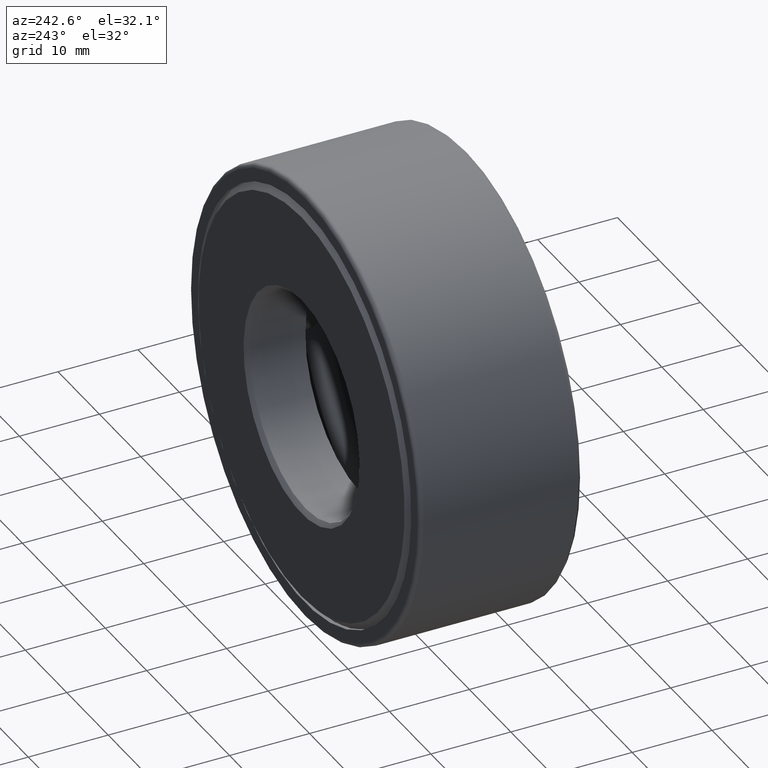
[diagram: clean part render]
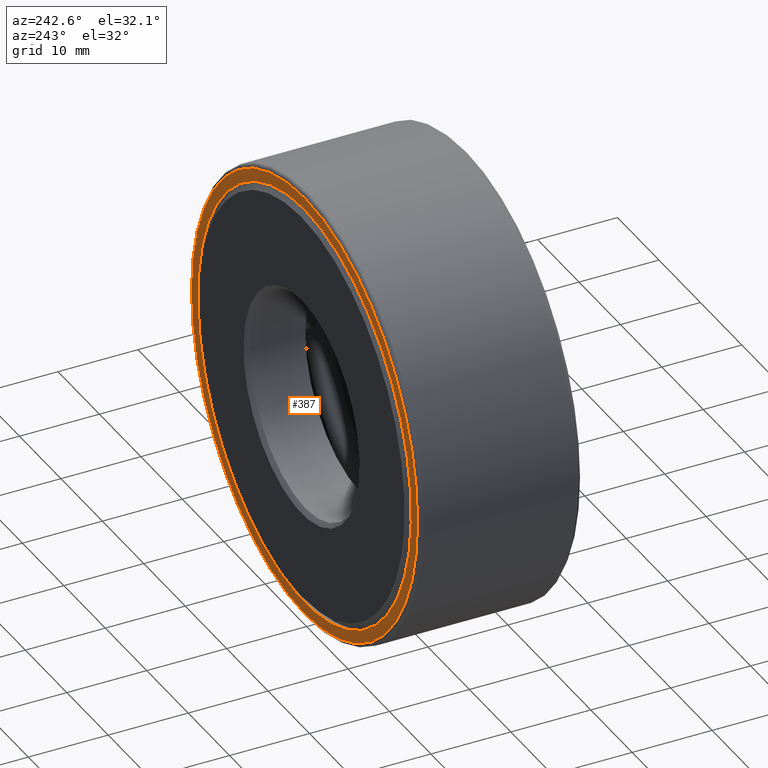
[diagram: same view with one face highlighted and labeled with its STEP entity id]
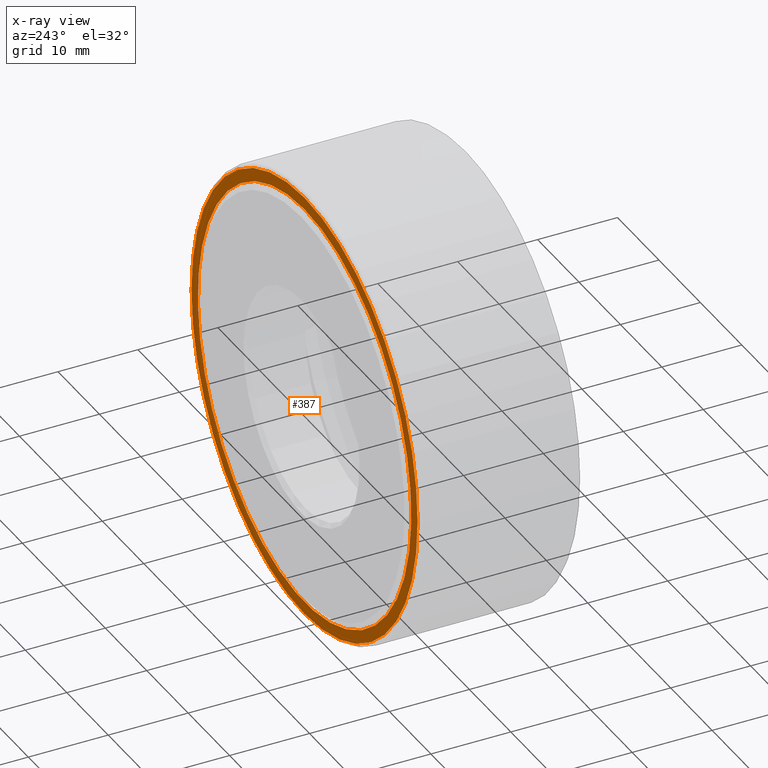
[diagram: x-ray of the same camera — body ghosted, the highlighted face saturated]
A machine part, auxiliary view. The second image highlights one B-rep face of the part: STEP entity #387.
The next image is the same camera in x-ray: the body ghosted, the highlighted face saturated — about 0% of this face is hidden behind the body in this view.
In plain terms, the highlighted planar face has unit normal (0, -1, 0).
Its self-contained STEP definition (entity closure, byte-faithful):
#6 = CIRCLE ( 'NONE', #44, 1.073750000000000000 ) ;
#44 = AXIS2_PLACEMENT_3D ( 'NONE', #155, #486, #216 ) ;
#73 = EDGE_LOOP ( 'NONE', ( #334 ) ) ;
#79 = DIRECTION ( 'NONE',  ( 0.0000000000000000000, -1.000000000000000000, 0.0000000000000000000 ) ) ;
#89 = DIRECTION ( 'NONE',  ( -0.0000000000000000000, 1.000000000000000000, -0.0000000000000000000 ) ) ;
#101 = EDGE_CURVE ( 'NONE', #157, #157, #146, .T. ) ;
#109 = CARTESIAN_POINT ( 'NONE',  ( 0.0000000000000000000, 0.7974999999999999900, 1.013750000000000200 ) ) ;
#126 = ORIENTED_EDGE ( 'NONE', *, *, #304, .T. ) ;
#132 = CARTESIAN_POINT ( 'NONE',  ( 0.0000000000000000000, 0.7974999999999999900, 0.0000000000000000000 ) ) ;
#140 = AXIS2_PLACEMENT_3D ( 'NONE', #173, #79, #554 ) ;
#146 = CIRCLE ( 'NONE', #348, 1.013750000000000200 ) ;
#155 = CARTESIAN_POINT ( 'NONE',  ( 0.0000000000000000000, 0.7974999999999999900, 0.0000000000000000000 ) ) ;
#157 = VERTEX_POINT ( 'NONE', #109 ) ;
#173 = CARTESIAN_POINT ( 'NONE',  ( 0.0000000000000000000, 0.7974999999999999900, 0.0000000000000000000 ) ) ;
#208 = CARTESIAN_POINT ( 'NONE',  ( 0.0000000000000000000, 0.7974999999999999900, 1.073750000000000000 ) ) ;
#216 = DIRECTION ( 'NONE',  ( 0.0000000000000000000, 0.0000000000000000000, 1.000000000000000000 ) ) ;
#296 = EDGE_LOOP ( 'NONE', ( #126 ) ) ;
#304 = EDGE_CURVE ( 'NONE', #591, #591, #6, .T. ) ;
#334 = ORIENTED_EDGE ( 'NONE', *, *, #101, .F. ) ;
#348 = AXIS2_PLACEMENT_3D ( 'NONE', #132, #89, #556 ) ;
#387 = ADVANCED_FACE ( 'NONE', ( #406, #419 ), #546, .F. ) ;
#406 = FACE_BOUND ( 'NONE', #73, .T. ) ;
#419 = FACE_OUTER_BOUND ( 'NONE', #296, .T. ) ;
#486 = DIRECTION ( 'NONE',  ( -0.0000000000000000000, 1.000000000000000000, -0.0000000000000000000 ) ) ;
#546 = PLANE ( 'NONE',  #140 ) ;
#554 = DIRECTION ( 'NONE',  ( 0.0000000000000000000, -0.0000000000000000000, -1.000000000000000000 ) ) ;
#556 = DIRECTION ( 'NONE',  ( 0.0000000000000000000, 0.0000000000000000000, 1.000000000000000000 ) ) ;
#591 = VERTEX_POINT ( 'NONE', #208 ) ;